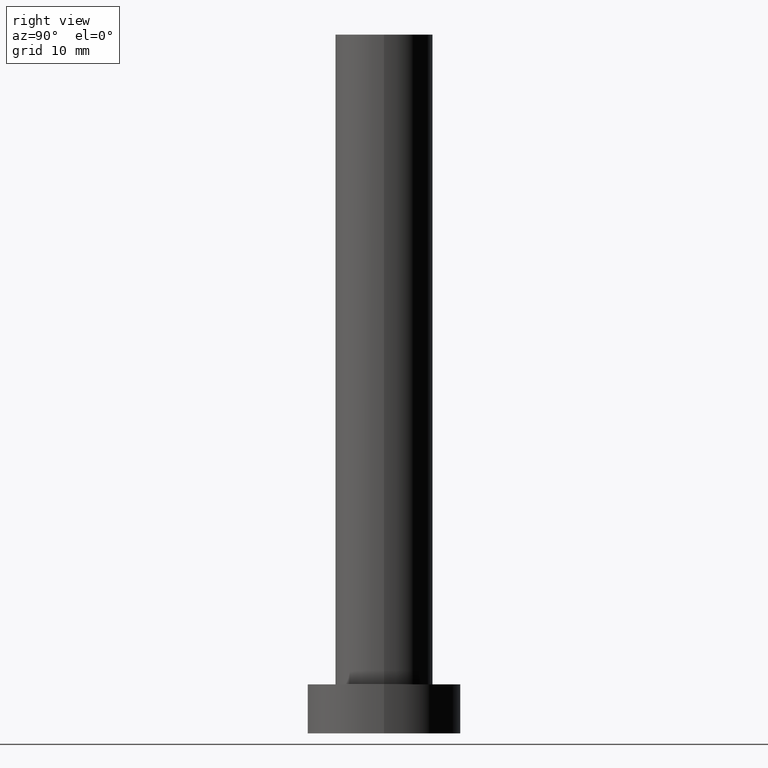
[diagram: clean part render]
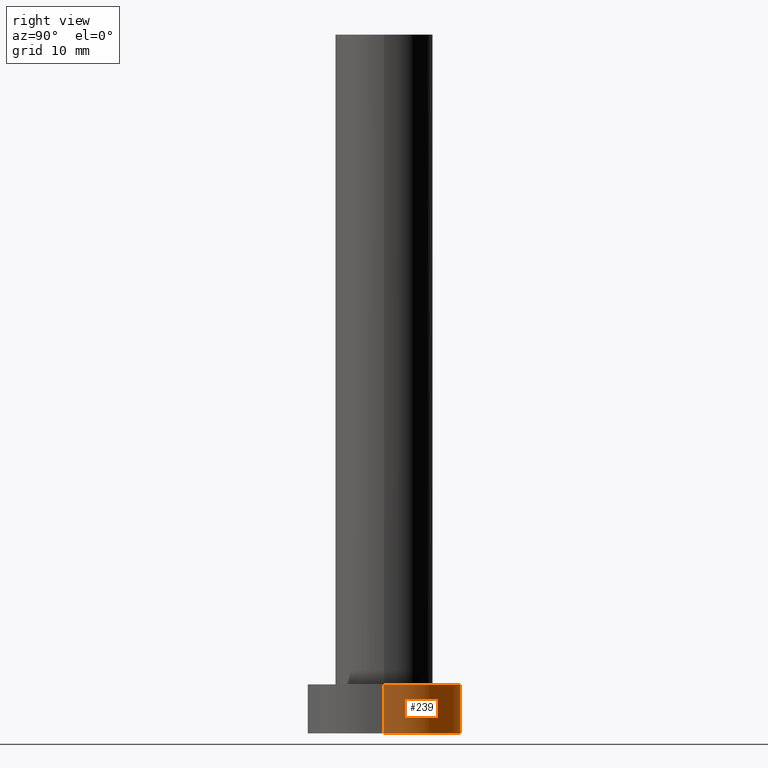
[diagram: same view with one face highlighted and labeled with its STEP entity id]
A machine part, right view. The second image highlights one B-rep face of the part: STEP entity #239.
In plain terms, the highlighted cylindrical surface (partial cylindrical patch) has radius 11 mm, axis along (-0, -0, -1).
Its self-contained STEP definition (entity closure, byte-faithful):
#3 = DIRECTION ( 'NONE',  ( -0.000000000000000000, -0.000000000000000000, -1.000000000000000000 ) ) ;
#4 = DIRECTION ( 'NONE',  ( 1.000000000000000000, 0.000000000000000000, 0.000000000000000000 ) ) ;
#9 = AXIS2_PLACEMENT_3D ( 'NONE', #41, #156, #4 ) ;
#19 = CARTESIAN_POINT ( 'NONE',  ( -11.00000000000000000, 0.000000000000000000, 7.000000000000000000 ) ) ;
#29 = DIRECTION ( 'NONE',  ( -1.000000000000000000, 0.000000000000000000, 0.000000000000000000 ) ) ;
#30 = ORIENTED_EDGE ( 'NONE', *, *, #151, .T. ) ;
#38 = ORIENTED_EDGE ( 'NONE', *, *, #123, .F. ) ;
#39 = VERTEX_POINT ( 'NONE', #209 ) ;
#41 = CARTESIAN_POINT ( 'NONE',  ( 0.000000000000000000, 0.000000000000000000, 7.000000000000000000 ) ) ;
#46 = LINE ( 'NONE', #193, #254 ) ;
#62 = EDGE_CURVE ( 'NONE', #188, #187, #118, .T. ) ;
#67 = DIRECTION ( 'NONE',  ( -0.000000000000000000, -0.000000000000000000, -1.000000000000000000 ) ) ;
#79 = DIRECTION ( 'NONE',  ( 0.000000000000000000, 0.000000000000000000, 1.000000000000000000 ) ) ;
#93 = VECTOR ( 'NONE', #3, 1000.000000000000000 ) ;
#95 = CARTESIAN_POINT ( 'NONE',  ( 0.000000000000000000, 0.000000000000000000, 0.000000000000000000 ) ) ;
#100 = CARTESIAN_POINT ( 'NONE',  ( -11.00000000000000000, 0.000000000000000000, 7.000000000000000000 ) ) ;
#118 = CIRCLE ( 'NONE', #9, 11.00000000000000000 ) ;
#122 = AXIS2_PLACEMENT_3D ( 'NONE', #219, #67, #29 ) ;
#123 = EDGE_CURVE ( 'NONE', #187, #39, #194, .T. ) ;
#150 = VERTEX_POINT ( 'NONE', #195 ) ;
#151 = EDGE_CURVE ( 'NONE', #188, #150, #46, .T. ) ;
#156 = DIRECTION ( 'NONE',  ( 0.000000000000000000, 0.000000000000000000, 1.000000000000000000 ) ) ;
#171 = EDGE_CURVE ( 'NONE', #150, #39, #211, .T. ) ;
#177 = CARTESIAN_POINT ( 'NONE',  ( 11.00000000000000000, 1.347111479062088405E-15, 7.000000000000000000 ) ) ;
#185 = FACE_OUTER_BOUND ( 'NONE', #253, .T. ) ;
#187 = VERTEX_POINT ( 'NONE', #100 ) ;
#188 = VERTEX_POINT ( 'NONE', #177 ) ;
#193 = CARTESIAN_POINT ( 'NONE',  ( 11.00000000000000000, 1.347111479062088405E-15, 7.000000000000000000 ) ) ;
#194 = LINE ( 'NONE', #19, #93 ) ;
#195 = CARTESIAN_POINT ( 'NONE',  ( 11.00000000000000000, 1.347111479062088405E-15, 0.000000000000000000 ) ) ;
#199 = CYLINDRICAL_SURFACE ( 'NONE', #122, 11.00000000000000000 ) ;
#208 = ORIENTED_EDGE ( 'NONE', *, *, #171, .T. ) ;
#209 = CARTESIAN_POINT ( 'NONE',  ( -11.00000000000000000, 0.000000000000000000, 0.000000000000000000 ) ) ;
#211 = CIRCLE ( 'NONE', #238, 11.00000000000000000 ) ;
#219 = CARTESIAN_POINT ( 'NONE',  ( 0.000000000000000000, 0.000000000000000000, 7.000000000000000000 ) ) ;
#234 = DIRECTION ( 'NONE',  ( 1.000000000000000000, 0.000000000000000000, 0.000000000000000000 ) ) ;
#236 = DIRECTION ( 'NONE',  ( -0.000000000000000000, -0.000000000000000000, -1.000000000000000000 ) ) ;
#238 = AXIS2_PLACEMENT_3D ( 'NONE', #95, #79, #234 ) ;
#239 = ADVANCED_FACE ( 'NONE', ( #185 ), #199, .T. ) ;
#246 = ORIENTED_EDGE ( 'NONE', *, *, #62, .F. ) ;
#253 = EDGE_LOOP ( 'NONE', ( #246, #30, #208, #38 ) ) ;
#254 = VECTOR ( 'NONE', #236, 1000.000000000000000 ) ;